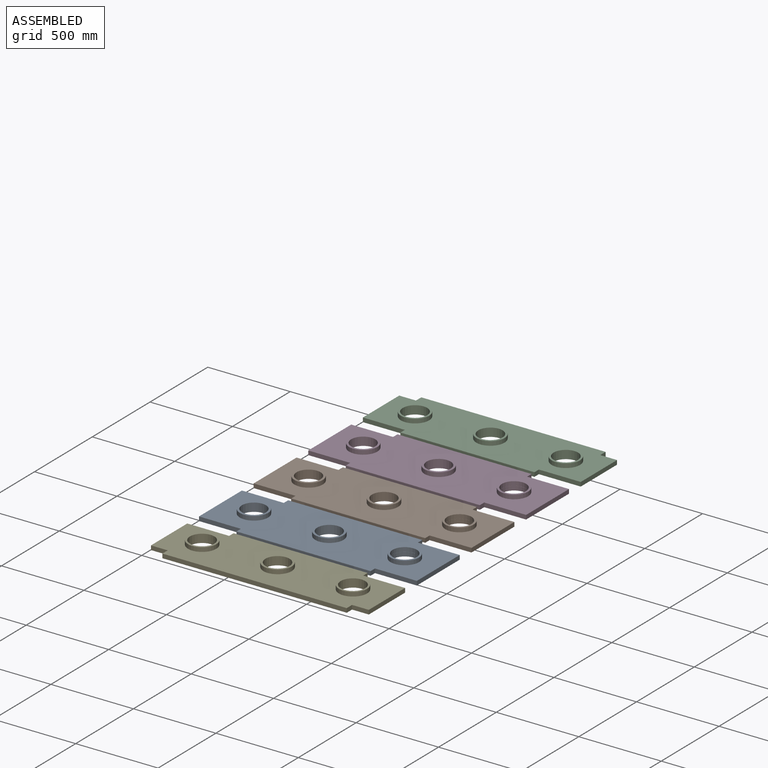
[diagram: assembled view]
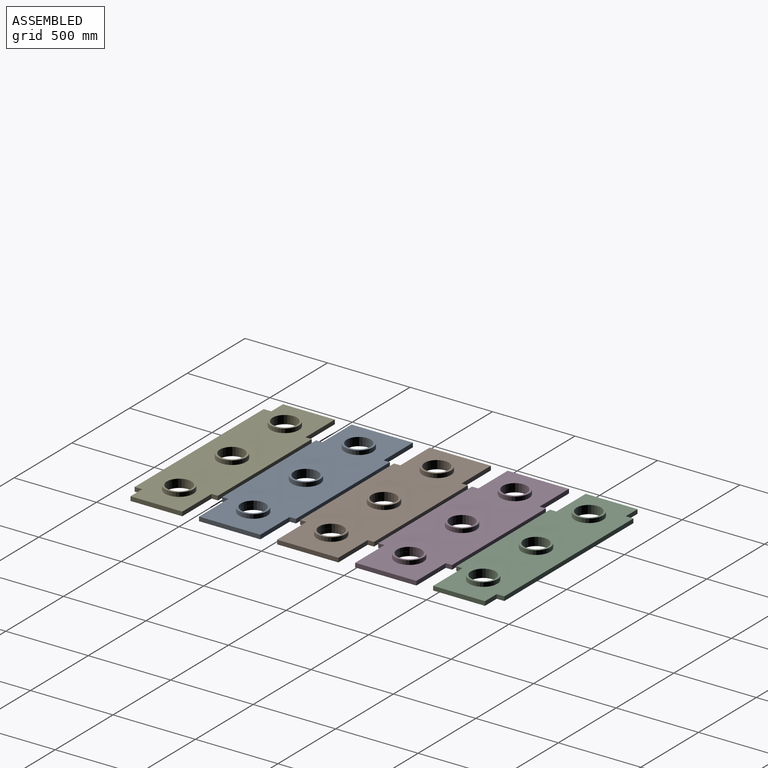
[diagram: assembled view, second angle]
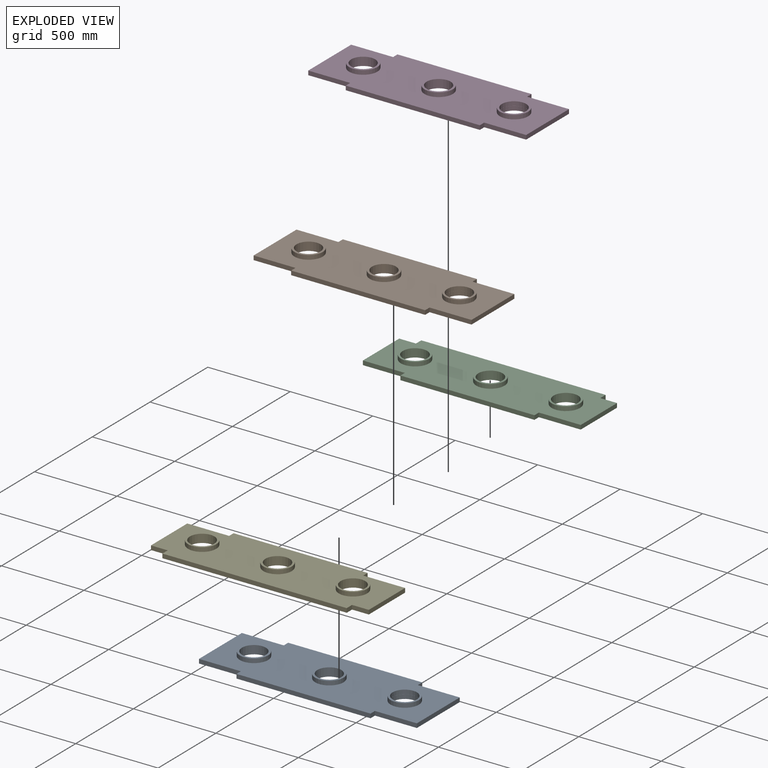
[diagram: exploded view]
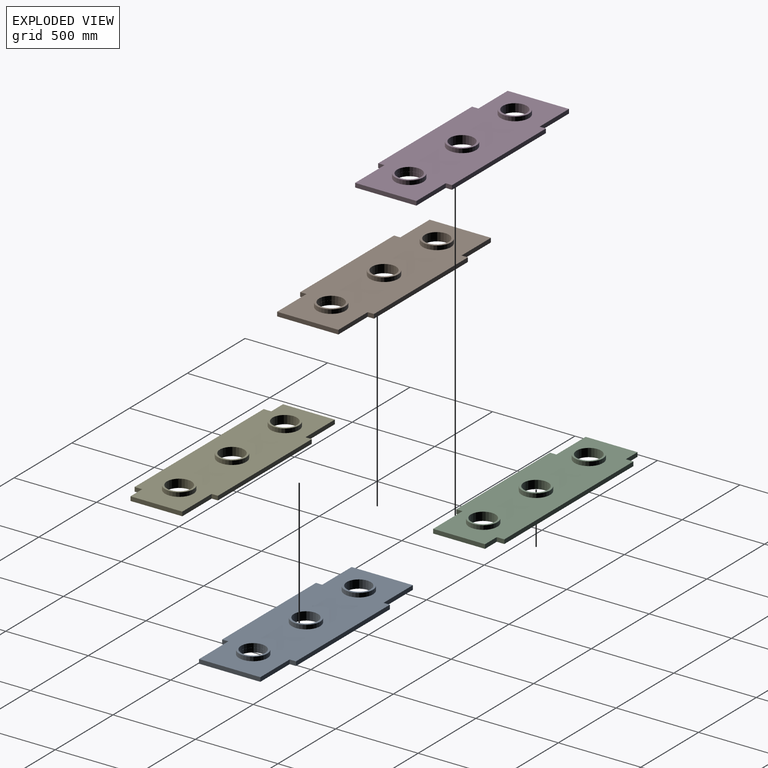
[diagram: exploded view, second angle]
ASSEMBLY  parts=5 mates=4
PART A: 25 faces, bbox 1320.8x447.7x50.8 mm
  f0: plane 147.22x147.22mm, normal (0,0,1), area 268.9mm2, adj f15,f21
  f1: plane 371.48x25.4mm, normal (-1,0,0), area 9435.5mm2, adj f2,f12,f13,f14
  f2: plane 254x25.4mm, normal (0,-1,0), area 6451.6mm2, adj f1,f3,f13,f14
  f3: plane 38.1x25.4mm, normal (-1,0,0), area 967.7mm2, adj f2,f4,f13,f14
  f4: plane 812.8x25.4mm, normal (0,-1,0), area 20645.1mm2, adj f3,f5,f13,f14
  f5: plane 38.1x25.4mm, normal (1,0,0), area 967.7mm2, adj f4,f6,f13,f14
  f6: plane 254x25.4mm, normal (0,-1,0), area 6451.6mm2, adj f5,f7,f13,f14
  f7: plane 371.48x25.4mm, normal (1,0,0), area 9435.5mm2, adj f6,f8,f13,f14
  f8: plane 254x25.4mm, normal (0,1,0), area 6451.6mm2, adj f7,f9,f13,f14
  f9: plane 38.1x25.4mm, normal (1,0,0), area 967.7mm2, adj f8,f10,f13,f14
  f10: plane 812.8x25.4mm, normal (0,1,0), area 20645.1mm2, adj f9,f11,f13,f14
  f11: plane 38.1x25.4mm, normal (-1,0,0), area 967.7mm2, adj f10,f12,f13,f14
  f12: plane 254x25.4mm, normal (0,1,0), area 6451.6mm2, adj f1,f11,f13,f14
  f13: plane 1320.8x447.68mm, normal (0,0,1), area 483319mm2, adj f1,f2,f3,f4,f5,f6,f7,f8
  f14: plane 1320.8x447.68mm, normal (0,0,-1), area 502320.5mm2, adj f1,f2,f3,f4,f5,f6,f7,f8
  f15: cylinder r=73.03mm len=146.05mm, axis (0,0,1), area 11654.3mm2, adj f0,f14
  f16: cylinder r=73.03mm len=146.05mm, axis (0,0,1), area 23308.5mm2, adj f14,f19
  f17: cylinder r=73.03mm len=146.05mm, axis (0,0,1), area 23308.5mm2, adj f14,f24
  f18: cylinder r=85.72mm len=171.45mm, axis (0,0,-1), area 13681.1mm2, adj f13,f19
  f19: plane 171.45x171.45mm, normal (0,0,1), area 6333.8mm2, adj f16,f18
  f20: cylinder r=85.72mm len=171.45mm, axis (0,0,-1), area 13681.1mm2, adj f13,f22
  f21: cylinder r=73.61mm len=147.22mm, axis (0,0,-1), area 11747.4mm2, adj f0,f22
  f22: plane 171.45x171.45mm, normal (0,0,1), area 6064.9mm2, adj f20,f21
  f23: cylinder r=85.72mm len=171.45mm, axis (0,0,-1), area 13681.1mm2, adj f13,f24
  f24: plane 171.45x171.45mm, normal (0,0,1), area 6333.8mm2, adj f17,f23
PART B: same geometry as A
PART C: 23 faces, bbox 1320.8x398.5x50.8 mm
  f0: plane 38.1x25.4mm, normal (1,0,0), area 967.7mm2, adj f1,f11,f12,f13
  f1: plane 812.8x25.4mm, normal (0,1,0), area 20645.1mm2, adj f0,f2,f12,f13
  f2: plane 38.1x25.4mm, normal (-1,0,0), area 967.7mm2, adj f1,f3,f12,f13
  f3: plane 254x25.4mm, normal (0,1,0), area 6451.6mm2, adj f2,f4,f12,f13
  f4: plane 314.33x25.4mm, normal (-1,0,0), area 7983.9mm2, adj f3,f5,f12,f13
  f5: plane 101.6x25.4mm, normal (0,-1,0), area 2580.6mm2, adj f4,f6,f12,f13
  f6: plane 46.04x25.4mm, normal (-1,0,0), area 1169.4mm2, adj f5,f7,f12,f13
  f7: plane 1117.6x25.4mm, normal (0,-1,0), area 28387mm2, adj f6,f8,f12,f13
  f8: plane 46.04x25.4mm, normal (1,0,0), area 1169.4mm2, adj f7,f9,f12,f13
  f9: plane 101.6x25.4mm, normal (0,-1,0), area 2580.6mm2, adj f8,f10,f12,f13
  f10: plane 314.33x25.4mm, normal (1,0,0), area 7983.9mm2, adj f9,f11,f12,f13
  f11: plane 254x25.4mm, normal (0,1,0), area 6451.6mm2, adj f0,f10,f12,f13
  f12: plane 1320.8x398.46mm, normal (0,0,1), area 428319.1mm2, adj f0,f1,f2,f3,f4,f5,f6,f7
  f13: plane 1320.8x398.46mm, normal (0,0,-1), area 445856.7mm2, adj f0,f1,f2,f3,f4,f5,f6,f7
  f14: cylinder r=85.72mm len=171.45mm, axis (0,0,-1), area 13681.1mm2, adj f12,f16
  f15: cylinder r=74.19mm len=148.37mm, axis (0,0,-1), area 23679.5mm2, adj f13,f16
  f16: plane 171.45x171.45mm, normal (0,0,1), area 5796.3mm2, adj f14,f15
  f17: cylinder r=85.72mm len=171.45mm, axis (0,0,-1), area 13681.1mm2, adj f12,f19
  f18: cylinder r=73.68mm len=147.36mm, axis (0,0,-1), area 23518.2mm2, adj f13,f19
  f19: plane 171.45x171.45mm, normal (0,0,1), area 6031.1mm2, adj f17,f18
  f20: cylinder r=85.72mm len=171.45mm, axis (0,0,-1), area 13681.1mm2, adj f12,f22
  f21: cylinder r=74.37mm len=148.74mm, axis (0,0,-1), area 23738.4mm2, adj f13,f22
  f22: plane 171.45x171.45mm, normal (0,0,1), area 5710.2mm2, adj f20,f21
PART D: same geometry as A
PART E: same geometry as C
PLACE A t=(-317.37,-112.85,117.49)mm
PLACE B t=(-317.37,360.23,117.49)mm
PLACE C rot(axis=(0,0,1),180deg) t=(770.57,1278.91,117.49)mm
PLACE D t=(-317.37,833.3,117.49)mm
PLACE E t=(-429.52,-854,117.49)mm
MATE planar A.f13 <-> E.f12  axis (0,0,1) through (576.93,-484.45,142.89)mm
MATE planar B.f13 <-> A.f13  axis (0,0,1) through (576.93,-11.38,142.89)mm
MATE planar D.f13 <-> B.f13  axis (0,0,1) through (576.93,461.7,142.89)mm
MATE planar C.f12 <-> D.f13  axis (0,0,1) through (170.53,934.77,142.89)mm
